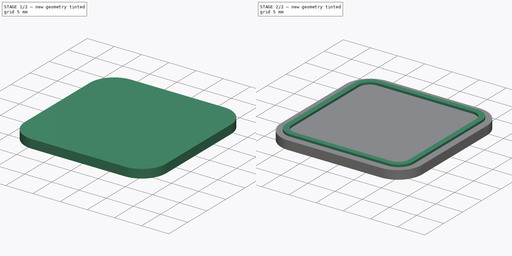
[diagram: build sequence overview — one tinted view per stage of 2, left to right]
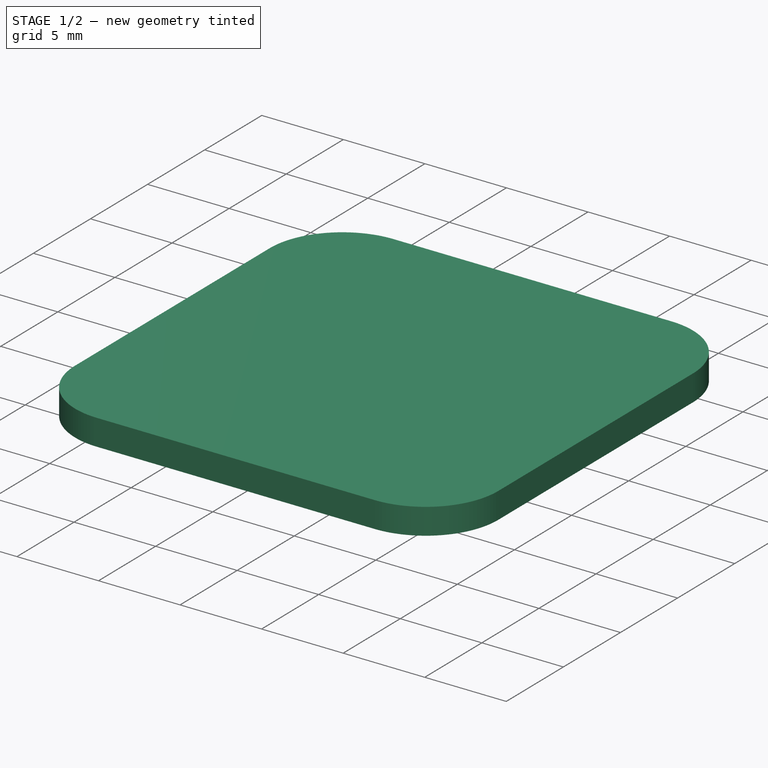
[diagram: stage 1 of 2 — iso view after this stage's code; geometry added in this stage tinted green]
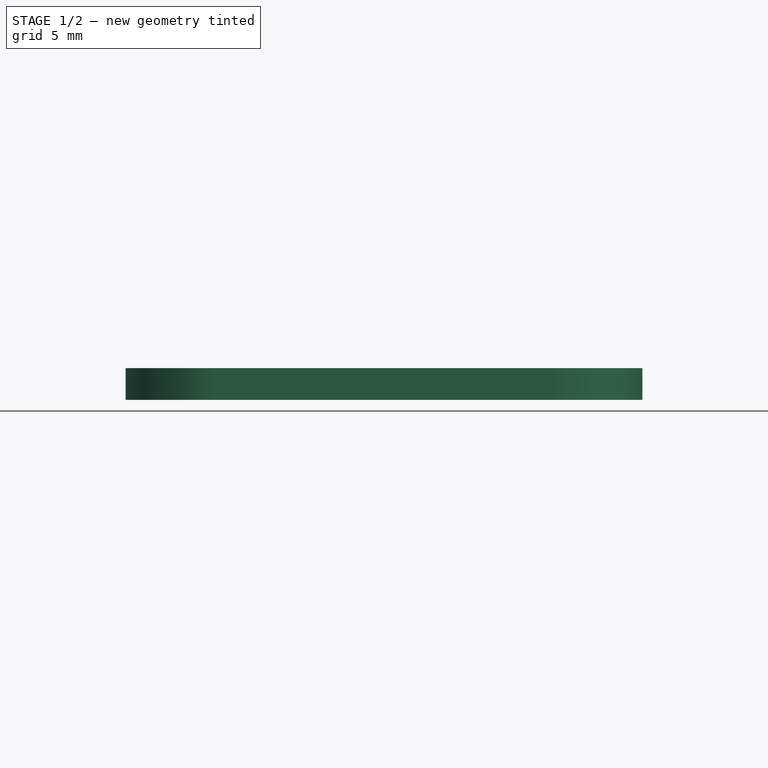
[diagram: stage 1 of 2 — front view after this stage's code; geometry added in this stage tinted green]
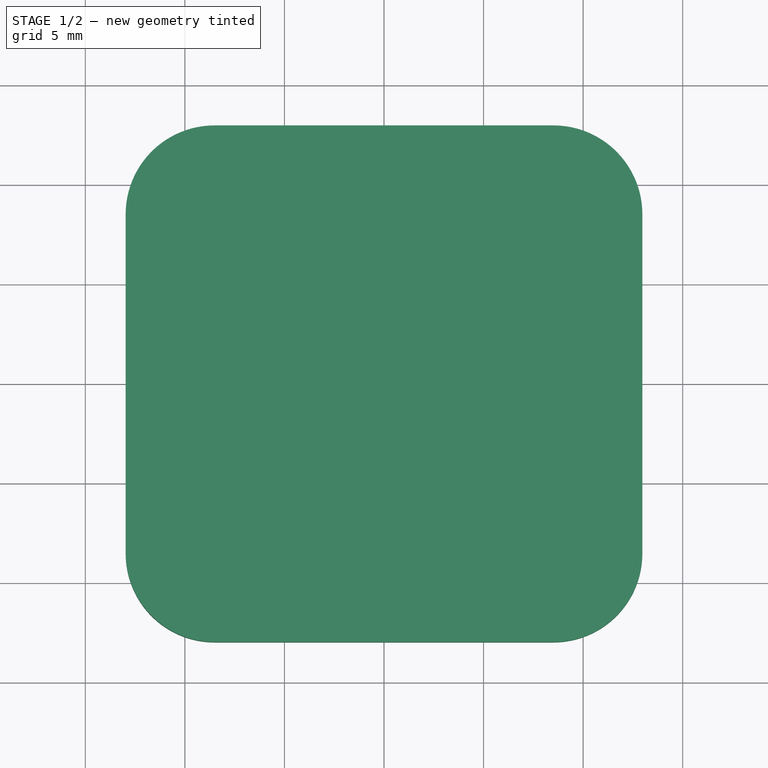
[diagram: stage 1 of 2 — top view after this stage's code; geometry added in this stage tinted green]
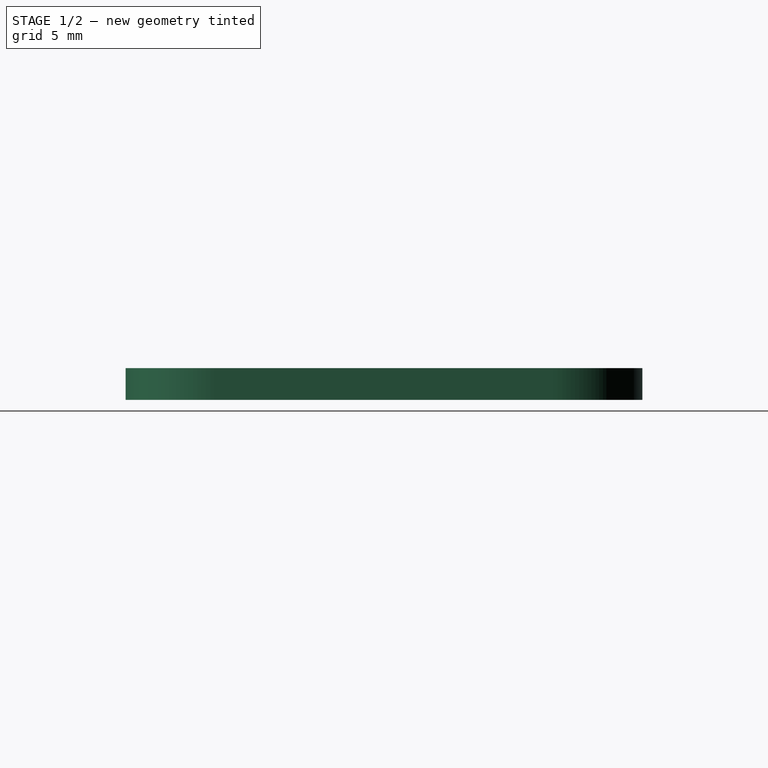
[diagram: stage 1 of 2 — right view after this stage's code; geometry added in this stage tinted green]
FCSTD DOCUMENT  (FreeCAD 1.0R39319 (Git))
Label: light_button_front
License: All rights reserved
LicenseURL: http://en.wikipedia.org/wiki/All_rights_reserved
objects: Sketcher::SketchObject×2, PartDesign::Pad×2, PartDesign::Body×1
note: 11 computed .brp shape members not serialized (recipe doc carries the construction recipe); baked Part::Feature solids carry a one-line shape summary decoded from their .brp

FEATURE [Sketcher::SketchObject] Sketch  label="shape"
  ArcFitTolerance = 0
  AttachmentSupport = -> [XY_Plane]
  FullyConstrained = true
  MakeInternals = false
  MapMode = 5
  sketch-geometry (15):
    g0: LineSegment StartX=-8.5101 StartY=12.975 StartZ=0 EndX=8.5101 EndY=12.975 EndZ=0
    g1: LineSegment StartX=12.975 StartY=8.5101 StartZ=0 EndX=12.975 EndY=-8.5101 EndZ=0
    g2: LineSegment StartX=8.5101 StartY=-12.975 StartZ=0 EndX=-8.5101 EndY=-12.975 EndZ=0
    g3: LineSegment StartX=-12.975 StartY=-8.5101 StartZ=0 EndX=-12.975 EndY=8.5101 EndZ=0
    g4: ArcOfCircle CenterX=-8.5101 CenterY=8.5101 CenterZ=0 NormalX=0 NormalY=0 NormalZ=1 AngleXU=0 Radius=4.4649 StartAngle=1.5708 EndAngle=3.14159
    g5: ArcOfCircle CenterX=-8.5101 CenterY=-8.5101 CenterZ=0 NormalX=0 NormalY=0 NormalZ=1 AngleXU=0 Radius=4.4649 StartAngle=3.14159 EndAngle=4.71239
    g6: ArcOfCircle CenterX=8.5101 CenterY=-8.5101 CenterZ=0 NormalX=0 NormalY=0 NormalZ=1 AngleXU=0 Radius=4.4649 StartAngle=4.71239 EndAngle=6.28319
    g7: ArcOfCircle CenterX=8.5101 CenterY=8.5101 CenterZ=0 NormalX=0 NormalY=0 NormalZ=1 AngleXU=0 Radius=4.4649 StartAngle=1e-16 EndAngle=1.5708
    g8: LineSegment [constr] StartX=-12.975 StartY=-8.5101 StartZ=0 EndX=12.975 EndY=-8.5101 EndZ=0
    g9: LineSegment [constr] StartX=-12.975 StartY=8.5101 StartZ=0 EndX=12.975 EndY=8.5101 EndZ=0
    g10: LineSegment [constr] StartX=-8.5101 StartY=-12.975 StartZ=0 EndX=-8.5101 EndY=12.975 EndZ=0
    g11: LineSegment [constr] StartX=8.5101 StartY=-12.975 StartZ=0 EndX=8.5101 EndY=12.975 EndZ=0
    g12: LineSegment [constr] StartX=-8.5101 StartY=-8.5101 StartZ=0 EndX=8.5101 EndY=8.5101 EndZ=0
    g13: GeomPoint [constr] X=0 Y=0 Z=0
    g14: LineSegment [constr] StartX=-11.6673 StartY=11.6673 StartZ=0 EndX=11.6673 EndY=-11.6673 EndZ=0
  constraints (43):
    c: Horizontal(g0)
    c: Horizontal(g2)
    c: Vertical(g3)
    c: Vertical(g1)
    c: Coincident(g4,g3)
    c: Coincident(g4,g0)
    c: Coincident(g5,g3)
    c: Coincident(g5,g2)
    c: Coincident(g6,g2)
    c: Coincident(g6,g1)
    c: Coincident(g7,g1)
    c: Coincident(g7,g0)
    c: Coincident(g8,g3)
    c: Coincident(g8,g1)
    c: Horizontal(g8)
    c: PointOnObject(g5,g8)
    c: PointOnObject(g6,g8)
    c: Equal(g2,g3)
    c: Equal(g3,g0)
    c: Equal(g0,g1)
    c: Coincident(g9,g3)
    c: Coincident(g9,g1)
    c: PointOnObject(g4,g9)
    c: PointOnObject(g7,g9)
    c: Coincident(g10,g2)
    c: Coincident(g10,g0)
    c: Coincident(g11,g2)
    c: Coincident(g11,g0)
    c: Vertical(g11)
    c: PointOnObject(g4,g10)
    c: PointOnObject(g5,g10)
    c: PointOnObject(g7,g11)
    c: Coincident(g12,g5)
    c: Coincident(g12,g7)
    c: PointOnObject(g13,g12)
    c: Coincident(g13,g-1)
    c: DistanceY(g10,g10) = 25.95
    c: PointOnObject(g14,g4)
    c: PointOnObject(g14,g6)
    c: PointOnObject(g13,g14)
    c: PointOnObject(g4,g14)
    c: PointOnObject(g6,g14)
    c: Distance(g14) = 33
FEATURE [PartDesign::Pad] Pad  label="Shape"
  AllowMultiFace = false
  Direction = (0,0,1)
  Length = 1.6
  Length2 = 100
  Profile = -> Sketch
  Suppressed = false
  Type = 0
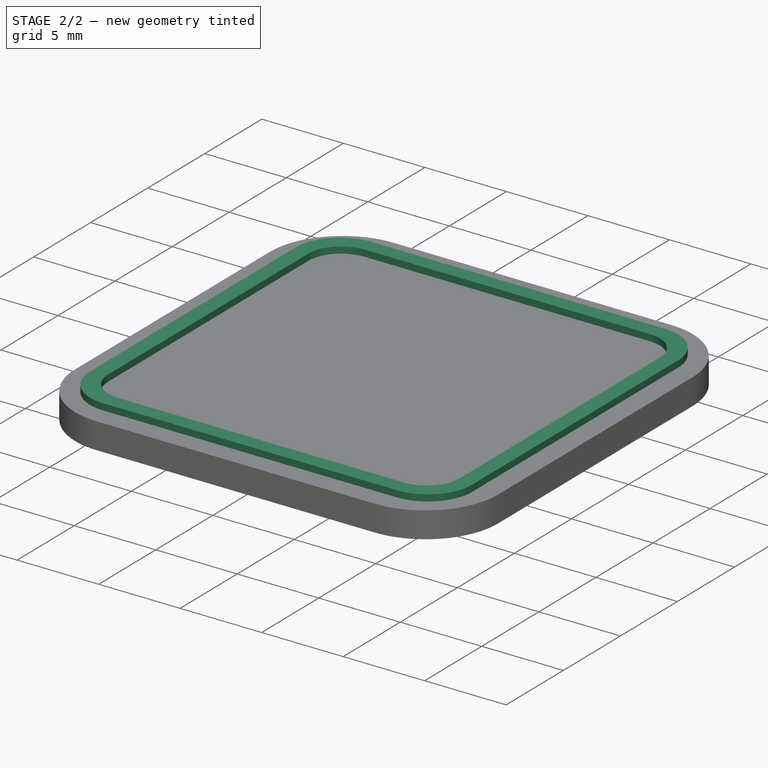
[diagram: stage 2 of 2 — iso view after this stage's code; geometry added in this stage tinted green]
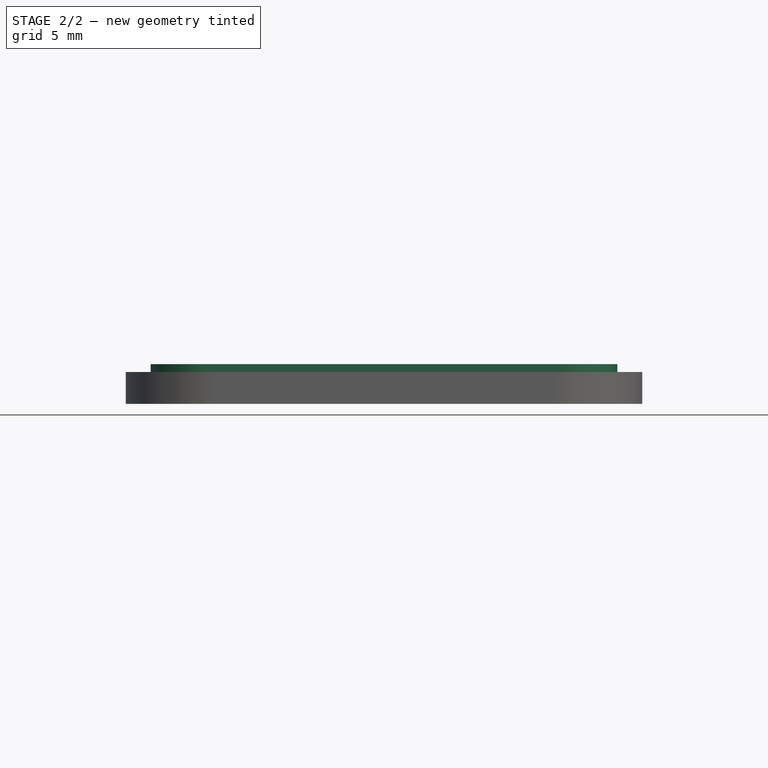
[diagram: stage 2 of 2 — front view after this stage's code; geometry added in this stage tinted green]
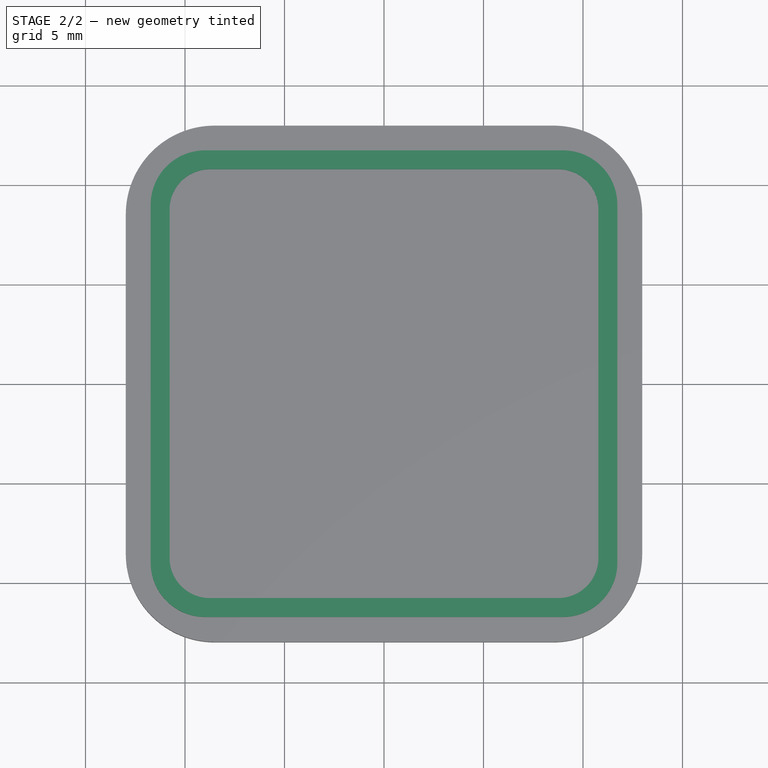
[diagram: stage 2 of 2 — top view after this stage's code; geometry added in this stage tinted green]
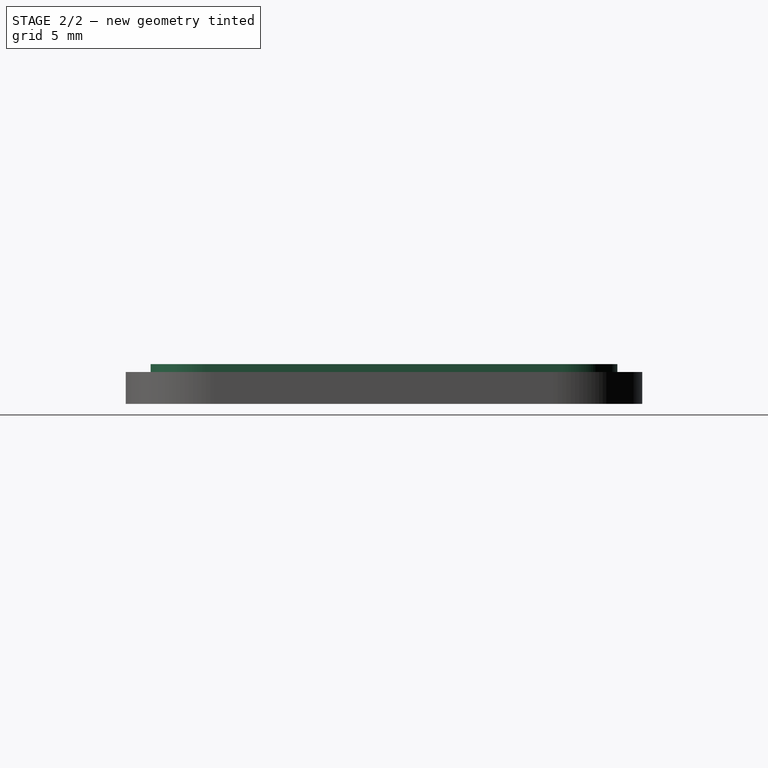
[diagram: stage 2 of 2 — right view after this stage's code; geometry added in this stage tinted green]
FEATURE [Sketcher::SketchObject] Sketch001  label="back_shape"
  ArcFitTolerance = 0
  AttachmentSupport = -> [Pad]
  FullyConstrained = true
  MakeInternals = false
  MapMode = 5
  Placement = pos=(0,0,1.6) rot=(0,0,1;0rad)
  sketch-geometry (28):
    g0: LineSegment StartX=-8.75152 StartY=10.775 StartZ=0 EndX=8.75152 EndY=10.775 EndZ=0
    g1: LineSegment StartX=10.775 StartY=8.75152 StartZ=0 EndX=10.775 EndY=-8.75152 EndZ=0
    g2: LineSegment StartX=8.75152 StartY=-10.775 StartZ=0 EndX=-8.75152 EndY=-10.775 EndZ=0
    g3: LineSegment StartX=-10.775 StartY=-8.75152 StartZ=0 EndX=-10.775 EndY=8.75152 EndZ=0
    g4: ArcOfCircle CenterX=-8.75152 CenterY=8.75152 CenterZ=0 NormalX=0 NormalY=0 NormalZ=1 AngleXU=0 Radius=2.02348 StartAngle=1.5708 EndAngle=3.14159
    g5: ArcOfCircle CenterX=-8.75152 CenterY=-8.75152 CenterZ=0 NormalX=0 NormalY=0 NormalZ=1 AngleXU=0 Radius=2.02348 StartAngle=3.14159 EndAngle=4.71239
    g6: ArcOfCircle CenterX=8.75152 CenterY=-8.75152 CenterZ=0 NormalX=0 NormalY=0 NormalZ=1 AngleXU=0 Radius=2.02348 StartAngle=4.71239 EndAngle=6.28319
    g7: ArcOfCircle CenterX=8.75152 CenterY=8.75152 CenterZ=0 NormalX=0 NormalY=0 NormalZ=1 AngleXU=0 Radius=2.02348 StartAngle=8e-16 EndAngle=1.5708
    g8: LineSegment [constr] StartX=-10.775 StartY=-8.75152 StartZ=0 EndX=10.775 EndY=-8.75152 EndZ=0
    g9: LineSegment [constr] StartX=-10.775 StartY=8.75152 StartZ=0 EndX=10.775 EndY=8.75152 EndZ=0
    g10: LineSegment [constr] StartX=-8.75152 StartY=-10.775 StartZ=0 EndX=-8.75152 EndY=10.775 EndZ=0
    g11: LineSegment [constr] StartX=8.75152 StartY=-10.775 StartZ=0 EndX=8.75152 EndY=10.775 EndZ=0
    g12: LineSegment [constr] StartX=-8.75152 StartY=-8.75152 StartZ=0 EndX=8.75152 EndY=8.75152 EndZ=0
    g13: GeomPoint [constr] X=0 Y=0 Z=0
    g14: LineSegment [constr] StartX=-10.1823 StartY=10.1823 StartZ=0 EndX=10.1823 EndY=-10.1823 EndZ=0
    g15: LineSegment StartX=-11.725 StartY=8.99295 StartZ=0 EndX=-11.725 EndY=-8.99294 EndZ=0
    g16: LineSegment StartX=-8.99294 StartY=-11.725 StartZ=0 EndX=8.99295 EndY=-11.725 EndZ=0
    g17: LineSegment StartX=11.725 StartY=-8.99294 StartZ=0 EndX=11.725 EndY=8.99295 EndZ=0
    g18: LineSegment StartX=8.99295 StartY=11.725 StartZ=0 EndX=-8.99294 EndY=11.725 EndZ=0
    g19: ArcOfCircle CenterX=-8.99295 CenterY=8.99295 CenterZ=0 NormalX=0 NormalY=0 NormalZ=1 AngleXU=0 Radius=2.73205 StartAngle=1.57079 EndAngle=3.14159
    g20: ArcOfCircle CenterX=8.99295 CenterY=8.99295 CenterZ=0 NormalX=0 NormalY=0 NormalZ=1 AngleXU=0 Radius=2.73205 StartAngle=-9e-16 EndAngle=1.5708
    g21: ArcOfCircle CenterX=8.99294 CenterY=-8.99294 CenterZ=0 NormalX=0 NormalY=0 NormalZ=1 AngleXU=0 Radius=2.73206 StartAngle=4.71239 EndAngle=6.28319
    g22: ArcOfCircle CenterX=-8.99294 CenterY=-8.99294 CenterZ=0 NormalX=0 NormalY=0 NormalZ=1 AngleXU=0 Radius=2.73206 StartAngle=3.14159 EndAngle=4.71239
    g23: LineSegment [constr] StartX=-11.725 StartY=8.99295 StartZ=0 EndX=11.725 EndY=8.99295 EndZ=0
    g24: LineSegment [constr] StartX=-11.725 StartY=-8.99294 StartZ=0 EndX=11.725 EndY=-8.99294 EndZ=0
    g25: LineSegment [constr] StartX=-8.99294 StartY=-11.725 StartZ=0 EndX=-8.99294 EndY=11.725 EndZ=0
    g26: LineSegment [constr] StartX=8.99295 StartY=-11.725 StartZ=0 EndX=8.99295 EndY=11.725 EndZ=0
    g27: LineSegment [constr] StartX=-10.9248 StartY=10.9248 StartZ=0 EndX=10.9248 EndY=-10.9248 EndZ=0
  constraints (83):
    c: Horizontal(g0)
    c: Horizontal(g2)
    c: Vertical(g3)
    c: Vertical(g1)
    c: Coincident(g4,g3)
    c: Coincident(g4,g0)
    c: Coincident(g5,g3)
    c: Coincident(g5,g2)
    c: Coincident(g6,g2)
    c: Coincident(g6,g1)
    c: Coincident(g7,g1)
    c: Coincident(g7,g0)
    c: Coincident(g8,g3)
    c: Coincident(g8,g1)
    c: Horizontal(g8)
    c: PointOnObject(g5,g8)
    c: PointOnObject(g6,g8)
    c: Equal(g2,g3)
    c: Equal(g3,g0)
    c: Equal(g0,g1)
    c: Coincident(g9,g3)
    c: Coincident(g9,g1)
    c: PointOnObject(g4,g9)
    c: PointOnObject(g7,g9)
    c: Coincident(g10,g2)
    c: Coincident(g10,g0)
    c: Coincident(g11,g2)
    c: Coincident(g11,g0)
    c: Vertical(g11)
    c: PointOnObject(g4,g10)
    c: PointOnObject(g5,g10)
    c: PointOnObject(g7,g11)
    c: Coincident(g12,g5)
    c: Coincident(g12,g7)
    c: PointOnObject(g13,g12)
    c: Coincident(g13,g-1)
    c: DistanceY(g10,g10) = 21.55
    c: PointOnObject(g14,g4)
    c: PointOnObject(g14,g6)
    c: PointOnObject(g13,g14)
    c: PointOnObject(g4,g14)
    c: PointOnObject(g6,g14)
    c: Distance(g14) = 28.8
    c: Vertical(g15)
    c: Horizontal(g16)
    c: Vertical(g17)
    c: Horizontal(g18)
    c: Equal(g18,g15)
    c: Equal(g15,g16)
    c: Equal(g16,g17)
    c: Coincident(g19,g15)
    c: Coincident(g19,g18)
    c: Coincident(g20,g18)
    c: Coincident(g20,g17)
    c: Coincident(g21,g17)
    c: Coincident(g21,g16)
    c: Coincident(g22,g16)
    c: Coincident(g22,g15)
    c: PointOnObject(g19,g14)
    c: PointOnObject(g20,g12)
    c: PointOnObject(g21,g14)
    c: PointOnObject(g22,g12)
    c: DistanceY(g16,g18) = 23.45
    c: Coincident(g23,g15)
    c: Coincident(g23,g17)
    c: Horizontal(g23)
    c: Coincident(g24,g15)
    c: Coincident(g24,g17)
    c: Coincident(g25,g16)
    c: Coincident(g25,g18)
    c: Vertical(g25)
    c: PointOnObject(g22,g25)
    c: PointOnObject(g22,g24)
    c: PointOnObject(g21,g24)
    c: Coincident(g26,g16)
    c: Coincident(g26,g18)
    c: PointOnObject(g20,g26)
    c: PointOnObject(g19,g23)
    c: PointOnObject(g27,g19)
    c: PointOnObject(g27,g21)
    c: PointOnObject(g14,g27)
    c: PointOnObject(g14,g27)
    c: Distance(g27) = 30.9
FEATURE [PartDesign::Pad] Pad001  label="BackShape"
  AllowMultiFace = false
  BaseFeature = -> Pad
  Direction = (0,0,1)
  Length = 0.4
  Length2 = 100
  Profile = -> Sketch001
  Suppressed = false
  Type = 0
FEATURE [PartDesign::Body] Body
  AllowCompound = false
  Group = -> [Sketch,Pad,Sketch001,Pad001]
  Origin = -> Origin
  Tip = -> Pad001
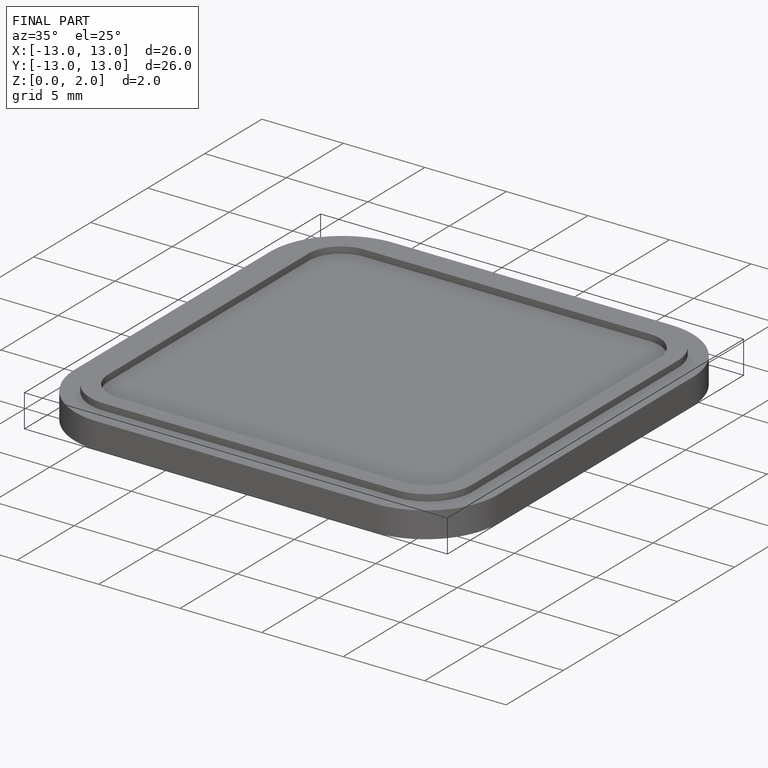
[diagram: finished part — iso view with bounding-box wireframe]
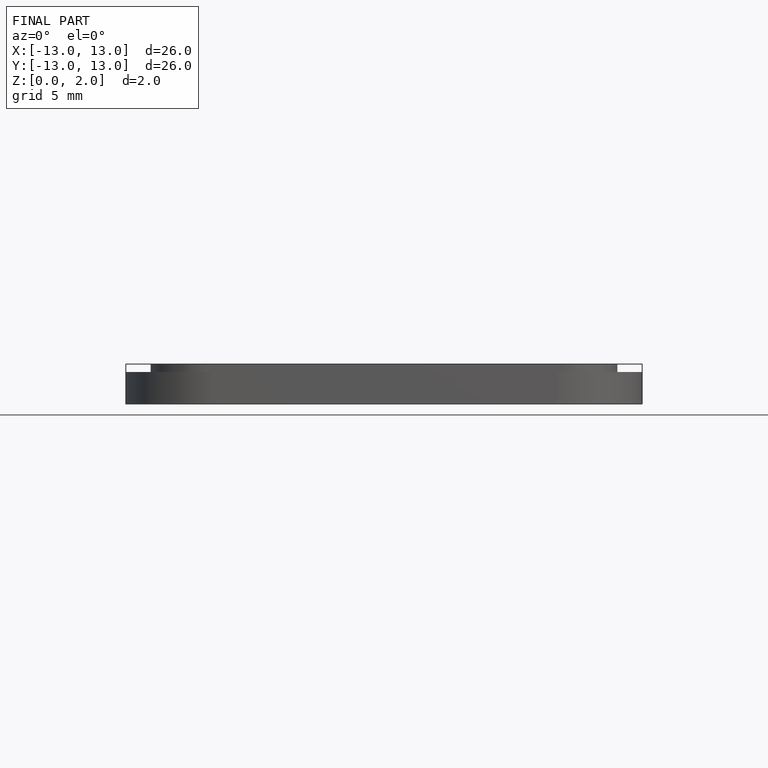
[diagram: finished part — front view with bounding-box wireframe]
